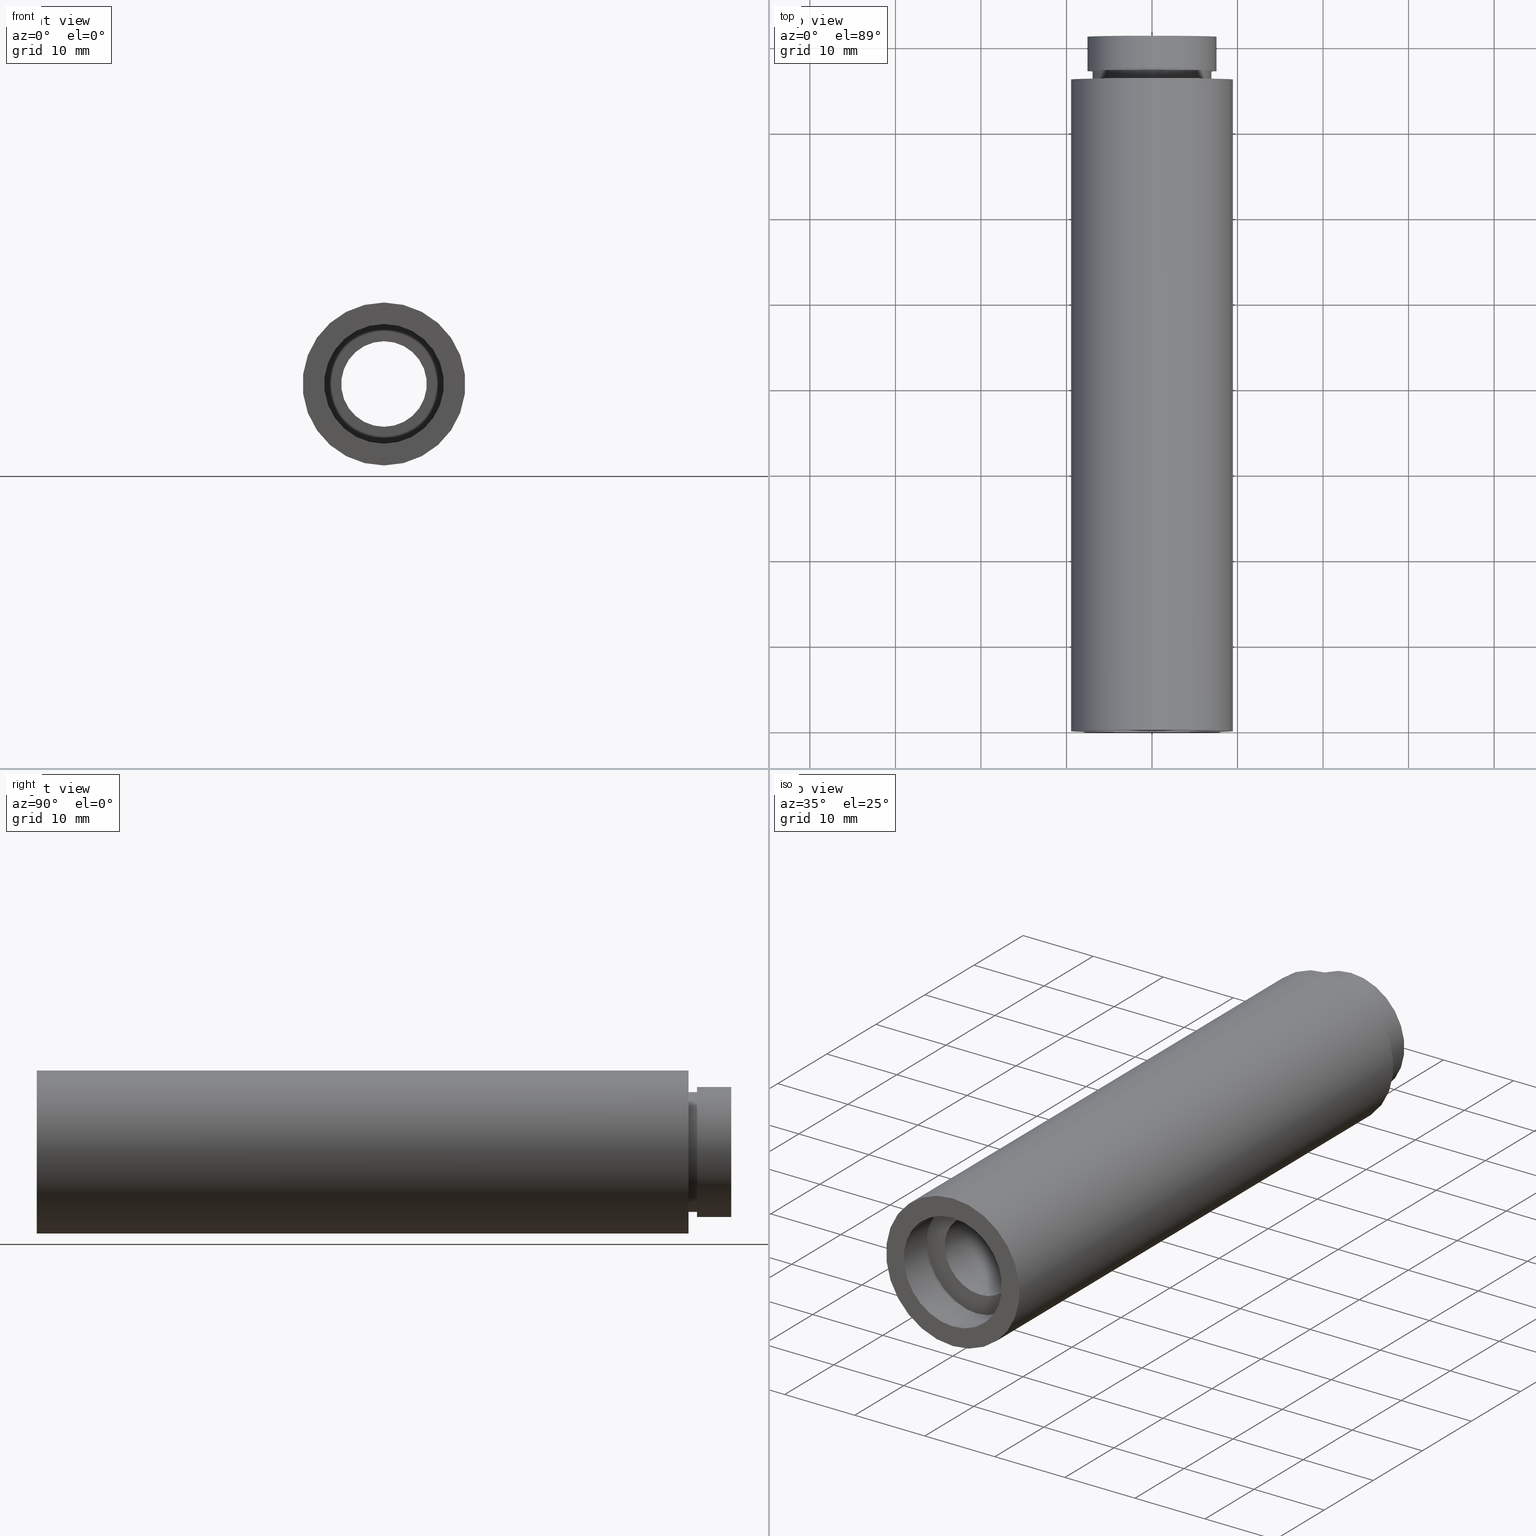
[diagram: canonical four-view strip — front | top / right | iso, engineering-drawing reading convention]
A machine part, canonical four-view strip (front | top / right | iso — engineering-drawing reading convention). The complete STEP part file that produces these views, byte-faithful:
ISO-10303-21;
HEADER;
FILE_DESCRIPTION (( 'STEP AP214' ),
    '1' );
FILE_NAME ('503088.STEP',
    '2019-09-11T06:05:59',
    ( '' ),
    ( '' ),
    'SwSTEP 2.0',
    'SolidWorks 2016',
    '' );
FILE_SCHEMA (( 'AUTOMOTIVE_DESIGN' ));
ENDSEC;

DATA;
#1 = SURFACE_STYLE_FILL_AREA ( #586 ) ;
#2 =( LENGTH_UNIT ( ) NAMED_UNIT ( * ) SI_UNIT ( .MILLI., .METRE. ) );
#3 = FACE_OUTER_BOUND ( 'NONE', #488, .T. ) ;
#4 = VERTEX_POINT ( 'NONE', #70 ) ;
#5 = CARTESIAN_POINT ( 'NONE',  ( 0.0000000000000000000, 161.3761669434274500, 0.0000000000000000000 ) ) ;
#6 = DIRECTION ( 'NONE',  ( -0.0000000000000000000, 1.000000000000000000, -0.0000000000000000000 ) ) ;
#7 = ORIENTED_EDGE ( 'NONE', *, *, #216, .T. ) ;
#8 =( NAMED_UNIT ( * ) SI_UNIT ( $, .STERADIAN. ) SOLID_ANGLE_UNIT ( ) );
#9 = ORIENTED_EDGE ( 'NONE', *, *, #555, .T. ) ;
#10 = ORIENTED_EDGE ( 'NONE', *, *, #426, .F. ) ;
#11 = DIRECTION ( 'NONE',  ( 0.0000000000000000000, 0.0000000000000000000, 1.000000000000000000 ) ) ;
#12 = EDGE_CURVE ( 'NONE', #300, #248, #200, .T. ) ;
#13 = ADVANCED_FACE ( 'NONE', ( #185 ), #491, .F. ) ;
#14 = APPLICATION_CONTEXT ( 'automotive_design' ) ;
#15 = CARTESIAN_POINT ( 'NONE',  ( 0.0000000000000000000, 4.499999999999976000, 0.0000000000000000000 ) ) ;
#16 = ADVANCED_FACE ( 'NONE', ( #104 ), #370, .T. ) ;
#17 = EDGE_CURVE ( 'NONE', #266, #565, #528, .T. ) ;
#18 = AXIS2_PLACEMENT_3D ( 'NONE', #480, #576, #322 ) ;
#19 = DIRECTION ( 'NONE',  ( 0.0000000000000000000, 0.0000000000000000000, 1.000000000000000000 ) ) ;
#20 = LINE ( 'NONE', #486, #561 ) ;
#21 = DIRECTION ( 'NONE',  ( -0.0000000000000000000, 1.000000000000000000, -0.0000000000000000000 ) ) ;
#22 = LINE ( 'NONE', #193, #329 ) ;
#23 = VERTEX_POINT ( 'NONE', #267 ) ;
#24 = PRESENTATION_LAYER_ASSIGNMENT (  '', '', ( #179 ) ) ;
#25 = CARTESIAN_POINT ( 'NONE',  ( 0.0000000000000000000, 161.3761669434274500, 0.0000000000000000000 ) ) ;
#26 = CIRCLE ( 'NONE', #64, 7.000000000000020400 ) ;
#27 = DIRECTION ( 'NONE',  ( -0.0000000000000000000, 1.000000000000000000, -0.0000000000000000000 ) ) ;
#28 = ORIENTED_EDGE ( 'NONE', *, *, #379, .F. ) ;
#29 = ORIENTED_EDGE ( 'NONE', *, *, #17, .T. ) ;
#30 = DIRECTION ( 'NONE',  ( -0.0000000000000000000, 1.000000000000000000, -0.0000000000000000000 ) ) ;
#31 = APPLICATION_CONTEXT ( 'automotive_design' ) ;
#32 = EDGE_LOOP ( 'NONE', ( #451, #115 ) ) ;
#33 = PRODUCT_DEFINITION_SHAPE ( 'NONE', 'NONE',  #145 ) ;
#34 =( NAMED_UNIT ( * ) PLANE_ANGLE_UNIT ( ) SI_UNIT ( $, .RADIAN. ) );
#35 = DIRECTION ( 'NONE',  ( -0.0000000000000000000, 1.000000000000000000, -0.0000000000000000000 ) ) ;
#36 = DIRECTION ( 'NONE',  ( 0.0000000000000000000, 0.0000000000000000000, 1.000000000000000000 ) ) ;
#37 = EDGE_LOOP ( 'NONE', ( #269, #55 ) ) ;
#38 = SURFACE_STYLE_USAGE ( .BOTH. , #138 ) ;
#39 = VECTOR ( 'NONE', #252, 1000.000000000000000 ) ;
#40 = DIRECTION ( 'NONE',  ( 0.0000000000000000000, 0.0000000000000000000, 1.000000000000000000 ) ) ;
#41 = UNCERTAINTY_MEASURE_WITH_UNIT (LENGTH_MEASURE( 1.000000000000000100E-005 ), #383, 'distance_accuracy_value', 'NONE');
#42 = AXIS2_PLACEMENT_3D ( 'NONE', #363, #136, #473 ) ;
#43 = ORIENTED_EDGE ( 'NONE', *, *, #468, .F. ) ;
#44 = CIRCLE ( 'NONE', #59, 5.000000000000018700 ) ;
#45 = FILL_AREA_STYLE ('',( #88 ) ) ;
#46 = EDGE_LOOP ( 'NONE', ( #521, #453 ) ) ;
#47 = CARTESIAN_POINT ( 'NONE',  ( 0.0000000000000000000, 161.3761669434274500, 0.0000000000000000000 ) ) ;
#48 =( NAMED_UNIT ( * ) SI_UNIT ( $, .STERADIAN. ) SOLID_ANGLE_UNIT ( ) );
#49 =( GEOMETRIC_REPRESENTATION_CONTEXT ( 3 ) GLOBAL_UNCERTAINTY_ASSIGNED_CONTEXT ( ( #105 ) ) GLOBAL_UNIT_ASSIGNED_CONTEXT ( ( #445, #58, #164 ) ) REPRESENTATION_CONTEXT ( 'NONE', 'WORKASPACE' ) );
#50 = SURFACE_STYLE_USAGE ( .BOTH. , #199 ) ;
#51 = AXIS2_PLACEMENT_3D ( 'NONE', #47, #378, #282 ) ;
#52 = CARTESIAN_POINT ( 'NONE',  ( 6.123233995736789000E-016, 5.499999999999976900, -5.000000000000019500 ) ) ;
#53 = PRESENTATION_STYLE_ASSIGNMENT (( #38 ) ) ;
#54 = ORIENTED_EDGE ( 'NONE', *, *, #426, .T. ) ;
#55 = ORIENTED_EDGE ( 'NONE', *, *, #555, .F. ) ;
#56 = FILL_AREA_STYLE_COLOUR ( '', #277 ) ;
#57 = CYLINDRICAL_SURFACE ( 'NONE', #550, 7.600000000000011200 ) ;
#58 =( NAMED_UNIT ( * ) PLANE_ANGLE_UNIT ( ) SI_UNIT ( $, .RADIAN. ) );
#59 = AXIS2_PLACEMENT_3D ( 'NONE', #463, #407, #76 ) ;
#60 =( NAMED_UNIT ( * ) PLANE_ANGLE_UNIT ( ) SI_UNIT ( $, .RADIAN. ) );
#61 = ORIENTED_EDGE ( 'NONE', *, *, #483, .F. ) ;
#62 = UNCERTAINTY_MEASURE_WITH_UNIT (LENGTH_MEASURE( 1.000000000000000100E-005 ), #86, 'distance_accuracy_value', 'NONE');
#63 = DIRECTION ( 'NONE',  ( 0.0000000000000000000, -1.000000000000000000, 0.0000000000000000000 ) ) ;
#64 = AXIS2_PLACEMENT_3D ( 'NONE', #393, #297, #582 ) ;
#65 = DIRECTION ( 'NONE',  ( -0.0000000000000000000, 1.000000000000000000, -0.0000000000000000000 ) ) ;
#66 = CARTESIAN_POINT ( 'NONE',  ( 0.0000000000000000000, 81.19999999999998900, 0.0000000000000000000 ) ) ;
#67 = FACE_BOUND ( 'NONE', #291, .T. ) ;
#68 = FACE_BOUND ( 'NONE', #32, .T. ) ;
#69 = ORIENTED_EDGE ( 'NONE', *, *, #476, .F. ) ;
#70 = CARTESIAN_POINT ( 'NONE',  ( 9.307315673519907200E-016, 4.499999999999976000, -7.600000000000019200 ) ) ;
#71 = FACE_BOUND ( 'NONE', #470, .T. ) ;
#72 = AXIS2_PLACEMENT_3D ( 'NONE', #158, #587, #540 ) ;
#73 = PRODUCT_CONTEXT ( 'NONE', #14, 'mechanical' ) ;
#74 = EDGE_LOOP ( 'NONE', ( #592, #516, #433, #325 ) ) ;
#75 = EDGE_LOOP ( 'NONE', ( #29, #454 ) ) ;
#76 = DIRECTION ( 'NONE',  ( 0.0000000000000000000, 0.0000000000000000000, 1.000000000000000000 ) ) ;
#77 = EDGE_CURVE ( 'NONE', #248, #300, #389, .T. ) ;
#78 = CARTESIAN_POINT ( 'NONE',  ( 9.307315673519909100E-016, 5.499999999999976900, -7.600000000000020100 ) ) ;
#79 = EDGE_LOOP ( 'NONE', ( #442, #244 ) ) ;
#80 = EDGE_CURVE ( 'NONE', #192, #221, #44, .T. ) ;
#81 = DIRECTION ( 'NONE',  ( -0.0000000000000000000, 1.000000000000000000, -0.0000000000000000000 ) ) ;
#82 = AXIS2_PLACEMENT_3D ( 'NONE', #536, #530, #574 ) ;
#83 = CARTESIAN_POINT ( 'NONE',  ( 1.166476076187856400E-015, 161.3761669434274500, -9.525000000000019900 ) ) ;
#84 = STYLED_ITEM ( 'NONE', ( #198 ), #388 ) ;
#85 = UNCERTAINTY_MEASURE_WITH_UNIT (LENGTH_MEASURE( 1.000000000000000100E-005 ), #126, 'distance_accuracy_value', 'NONE');
#86 =( LENGTH_UNIT ( ) NAMED_UNIT ( * ) SI_UNIT ( .MILLI., .METRE. ) );
#87 = DIRECTION ( 'NONE',  ( -0.0000000000000000000, 1.000000000000000000, -0.0000000000000000000 ) ) ;
#88 = FILL_AREA_STYLE_COLOUR ( '', #381 ) ;
#89 = EDGE_CURVE ( 'NONE', #602, #336, #380, .T. ) ;
#90 =( NAMED_UNIT ( * ) PLANE_ANGLE_UNIT ( ) SI_UNIT ( $, .RADIAN. ) );
#91 = EDGE_CURVE ( 'NONE', #364, #229, #458, .T. ) ;
#92 = CARTESIAN_POINT ( 'NONE',  ( 7.600000000000020100, 5.499999999999984000, 0.0000000000000000000 ) ) ;
#93 = ORIENTED_EDGE ( 'NONE', *, *, #597, .T. ) ;
#94 = SURFACE_STYLE_FILL_AREA ( #350 ) ;
#95 = DIRECTION ( 'NONE',  ( 0.0000000000000000000, 0.0000000000000000000, 1.000000000000000000 ) ) ;
#96 = COLOUR_RGB ( '',1.000000000000000000, 1.000000000000000000, 1.000000000000000000 ) ;
#97 = VERTEX_POINT ( 'NONE', #271 ) ;
#98 = CARTESIAN_POINT ( 'NONE',  ( 9.307315673519897300E-016, 161.3761669434274500, -7.600000000000011200 ) ) ;
#99 = DIRECTION ( 'NONE',  ( 0.0000000000000000000, 0.0000000000000000000, 1.000000000000000000 ) ) ;
#100 = CLOSED_SHELL ( 'NONE', ( #295, #504, #452, #163, #299, #211, #585, #16, #172, #335, #394, #447, #113, #388, #258, #588, #547, #13 ) ) ;
#101 = CYLINDRICAL_SURFACE ( 'NONE', #18, 7.000000000000020400 ) ;
#102 = PRESENTATION_STYLE_ASSIGNMENT (( #50 ) ) ;
#103 = AXIS2_PLACEMENT_3D ( 'NONE', #92, #287, #245 ) ;
#104 = FACE_OUTER_BOUND ( 'NONE', #408, .T. ) ;
#105 = UNCERTAINTY_MEASURE_WITH_UNIT (LENGTH_MEASURE( 1.000000000000000100E-005 ), #445, 'distance_accuracy_value', 'NONE');
#106 = CIRCLE ( 'NONE', #616, 5.000000000000018700 ) ;
#107 = DIRECTION ( 'NONE',  ( 0.0000000000000000000, 0.0000000000000000000, 1.000000000000000000 ) ) ;
#108 = ORIENTED_EDGE ( 'NONE', *, *, #89, .F. ) ;
#109 = VERTEX_POINT ( 'NONE', #78 ) ;
#110 = ORIENTED_EDGE ( 'NONE', *, *, #91, .T. ) ;
#111 = CIRCLE ( 'NONE', #467, 7.000000000000019500 ) ;
#112 = DIRECTION ( 'NONE',  ( -0.0000000000000000000, 1.000000000000000000, 0.0000000000000000000 ) ) ;
#113 = ADVANCED_FACE ( 'NONE', ( #427, #513 ), #183, .F. ) ;
#114 = SURFACE_SIDE_STYLE ('',( #120 ) ) ;
#115 = ORIENTED_EDGE ( 'NONE', *, *, #147, .F. ) ;
#116 = PRODUCT ( '503088', '503088', '', ( #73 ) ) ;
#117 = LINE ( 'NONE', #475, #132 ) ;
#118 = MECHANICAL_DESIGN_GEOMETRIC_PRESENTATION_REPRESENTATION (  '', ( #84 ), #401 ) ;
#119 = COLOUR_RGB ( '',1.000000000000000000, 1.000000000000000000, 1.000000000000000000 ) ;
#120 = SURFACE_STYLE_FILL_AREA ( #342 ) ;
#121 = EDGE_LOOP ( 'NONE', ( #69, #214, #142, #226 ) ) ;
#122 = CARTESIAN_POINT ( 'NONE',  ( 0.0000000000000000000, 77.19999999999998900, 0.0000000000000000000 ) ) ;
#123 = EDGE_CURVE ( 'NONE', #4, #109, #219, .T. ) ;
#124 = EDGE_CURVE ( 'NONE', #392, #356, #441, .T. ) ;
#125 = STYLED_ITEM ( 'NONE', ( #194 ), #492 ) ;
#126 =( LENGTH_UNIT ( ) NAMED_UNIT ( * ) SI_UNIT ( .MILLI., .METRE. ) );
#127 = ORIENTED_EDGE ( 'NONE', *, *, #476, .T. ) ;
#128 = DIRECTION ( 'NONE',  ( 0.0000000000000000000, 0.0000000000000000000, 1.000000000000000000 ) ) ;
#129 = AXIS2_PLACEMENT_3D ( 'NONE', #500, #289, #330 ) ;
#130 = DIRECTION ( 'NONE',  ( -0.0000000000000000000, 1.000000000000000000, -0.0000000000000000000 ) ) ;
#131 = PRESENTATION_STYLE_ASSIGNMENT (( #409 ) ) ;
#132 = VECTOR ( 'NONE', #241, 1000.000000000000000 ) ;
#133 = DIRECTION ( 'NONE',  ( 0.0000000000000000000, 0.0000000000000000000, 1.000000000000000000 ) ) ;
#134 = CARTESIAN_POINT ( 'NONE',  ( 9.525000000000019900, 76.19999999999998900, 0.0000000000000000000 ) ) ;
#135 = AXIS2_PLACEMENT_3D ( 'NONE', #332, #580, #497 ) ;
#136 = DIRECTION ( 'NONE',  ( -0.0000000000000000000, 1.000000000000000000, -0.0000000000000000000 ) ) ;
#137 = AXIS2_PLACEMENT_3D ( 'NONE', #430, #239, #570 ) ;
#138 = SURFACE_SIDE_STYLE ('',( #242 ) ) ;
#139 = ORIENTED_EDGE ( 'NONE', *, *, #313, .F. ) ;
#140 = VECTOR ( 'NONE', #265, 1000.000000000000000 ) ;
#141 = EDGE_LOOP ( 'NONE', ( #253, #110 ) ) ;
#142 = ORIENTED_EDGE ( 'NONE', *, *, #468, .T. ) ;
#143 = CARTESIAN_POINT ( 'NONE',  ( 8.572527594031485000E-016, 161.3761669434274500, -7.000000000000010700 ) ) ;
#144 = CARTESIAN_POINT ( 'NONE',  ( 0.0000000000000000000, 76.19999999999998900, 9.525000000000019900 ) ) ;
#145 = PRODUCT_DEFINITION ( 'δ֪', '', #398, #338 ) ;
#146 = CARTESIAN_POINT ( 'NONE',  ( 8.572527594031496900E-016, 4.499999999999976000, -7.000000000000020400 ) ) ;
#147 = EDGE_CURVE ( 'NONE', #97, #397, #268, .T. ) ;
#148 = AXIS2_PLACEMENT_3D ( 'NONE', #153, #490, #95 ) ;
#149 = CIRCLE ( 'NONE', #148, 7.600000000000020100 ) ;
#150 = FILL_AREA_STYLE_COLOUR ( '', #207 ) ;
#151 = FACE_OUTER_BOUND ( 'NONE', #75, .T. ) ;
#152 = ORIENTED_EDGE ( 'NONE', *, *, #396, .F. ) ;
#153 = CARTESIAN_POINT ( 'NONE',  ( 0.0000000000000000000, 5.499999999999976900, 0.0000000000000000000 ) ) ;
#154 = MECHANICAL_DESIGN_GEOMETRIC_PRESENTATION_REPRESENTATION (  '', ( #288 ), #327 ) ;
#155 = CIRCLE ( 'NONE', #256, 7.600000000000010300 ) ;
#156 = CIRCLE ( 'NONE', #196, 9.525000000000019900 ) ;
#157 = MANIFOLD_SOLID_BREP ( '��ת1', #100 ) ;
#158 = CARTESIAN_POINT ( 'NONE',  ( 7.000000000000010700, 77.19999999999998900, 0.0000000000000000000 ) ) ;
#159 = DIRECTION ( 'NONE',  ( 0.0000000000000000000, -0.0000000000000000000, -1.000000000000000000 ) ) ;
#160 = CIRCLE ( 'NONE', #135, 7.600000000000019200 ) ;
#161 = AXIS2_PLACEMENT_3D ( 'NONE', #560, #600, #423 ) ;
#162 = CARTESIAN_POINT ( 'NONE',  ( 0.0000000000000000000, 81.19999999999998900, 0.0000000000000000000 ) ) ;
#163 = ADVANCED_FACE ( 'NONE', ( #508 ), #57, .T. ) ;
#164 =( NAMED_UNIT ( * ) SI_UNIT ( $, .STERADIAN. ) SOLID_ANGLE_UNIT ( ) );
#165 = DIRECTION ( 'NONE',  ( 0.0000000000000000000, 0.0000000000000000000, 1.000000000000000000 ) ) ;
#166 = SURFACE_STYLE_FILL_AREA ( #169 ) ;
#167 = CARTESIAN_POINT ( 'NONE',  ( 0.0000000000000000000, -2.775557561562891400E-014, 0.0000000000000000000 ) ) ;
#168 = DIRECTION ( 'NONE',  ( 0.0000000000000000000, 0.0000000000000000000, 1.000000000000000000 ) ) ;
#169 = FILL_AREA_STYLE ('',( #450 ) ) ;
#170 = AXIS2_PLACEMENT_3D ( 'NONE', #15, #307, #559 ) ;
#171 = CYLINDRICAL_SURFACE ( 'NONE', #51, 7.000000000000010700 ) ;
#172 = ADVANCED_FACE ( 'NONE', ( #68, #151 ), #321, .F. ) ;
#173 = SURFACE_STYLE_FILL_AREA ( #375 ) ;
#174 = DIRECTION ( 'NONE',  ( -0.0000000000000000000, 1.000000000000000000, -0.0000000000000000000 ) ) ;
#175 = MECHANICAL_DESIGN_GEOMETRIC_PRESENTATION_REPRESENTATION (  '', ( #279 ), #369 ) ;
#176 = SURFACE_STYLE_USAGE ( .BOTH. , #114 ) ;
#177 = LINE ( 'NONE', #340, #39 ) ;
#178 = DIRECTION ( 'NONE',  ( -0.0000000000000000000, 1.000000000000000000, -0.0000000000000000000 ) ) ;
#179 = STYLED_ITEM ( 'NONE', ( #102 ), #295 ) ;
#180 = ORIENTED_EDGE ( 'NONE', *, *, #12, .T. ) ;
#181 = UNCERTAINTY_MEASURE_WITH_UNIT (LENGTH_MEASURE( 1.000000000000000100E-005 ), #610, 'distance_accuracy_value', 'NONE');
#182 = ORIENTED_EDGE ( 'NONE', *, *, #614, .T. ) ;
#183 = PLANE ( 'NONE',  #591 ) ;
#184 = EDGE_CURVE ( 'NONE', #261, #565, #262, .T. ) ;
#185 = FACE_OUTER_BOUND ( 'NONE', #575, .T. ) ;
#186 = AXIS2_PLACEMENT_3D ( 'NONE', #197, #532, #284 ) ;
#187 = ORIENTED_EDGE ( 'NONE', *, *, #12, .F. ) ;
#188 = SURFACE_SIDE_STYLE ('',( #345 ) ) ;
#189 = LINE ( 'NONE', #209, #286 ) ;
#190 = CARTESIAN_POINT ( 'NONE',  ( 0.0000000000000000000, -2.775557561562891400E-014, 0.0000000000000000000 ) ) ;
#191 = DIRECTION ( 'NONE',  ( -0.0000000000000000000, 1.000000000000000000, -0.0000000000000000000 ) ) ;
#192 = VERTEX_POINT ( 'NONE', #428 ) ;
#193 = CARTESIAN_POINT ( 'NONE',  ( 6.123233995736788000E-016, 161.3761669434274500, -5.000000000000018700 ) ) ;
#194 = PRESENTATION_STYLE_ASSIGNMENT (( #390 ) ) ;
#195 = SURFACE_STYLE_USAGE ( .BOTH. , #478 ) ;
#196 = AXIS2_PLACEMENT_3D ( 'NONE', #167, #65, #19 ) ;
#197 = CARTESIAN_POINT ( 'NONE',  ( 0.0000000000000000000, 161.3761669434274500, 0.0000000000000000000 ) ) ;
#198 = PRESENTATION_STYLE_ASSIGNMENT (( #391 ) ) ;
#199 = SURFACE_SIDE_STYLE ('',( #173 ) ) ;
#200 = CIRCLE ( 'NONE', #465, 7.000000000000010700 ) ;
#201 = PRESENTATION_LAYER_ASSIGNMENT (  '', '', ( #341 ) ) ;
#202 = DIRECTION ( 'NONE',  ( -0.0000000000000000000, 1.000000000000000000, -0.0000000000000000000 ) ) ;
#203 = EDGE_CURVE ( 'NONE', #364, #221, #22, .T. ) ;
#204 = FACE_OUTER_BOUND ( 'NONE', #121, .T. ) ;
#205 = VERTEX_POINT ( 'NONE', #527 ) ;
#206 = DIRECTION ( 'NONE',  ( -0.0000000000000000000, 1.000000000000000000, -0.0000000000000000000 ) ) ;
#207 = COLOUR_RGB ( '',1.000000000000000000, 1.000000000000000000, 1.000000000000000000 ) ;
#208 =( GEOMETRIC_REPRESENTATION_CONTEXT ( 3 ) GLOBAL_UNCERTAINTY_ASSIGNED_CONTEXT ( ( #222 ) ) GLOBAL_UNIT_ASSIGNED_CONTEXT ( ( #293, #589, #8 ) ) REPRESENTATION_CONTEXT ( 'NONE', 'WORKASPACE' ) );
#209 = CARTESIAN_POINT ( 'NONE',  ( 0.0000000000000000000, 161.3761669434274500, 7.000000000000010700 ) ) ;
#210 = CARTESIAN_POINT ( 'NONE',  ( 0.0000000000000000000, 76.19999999999998900, 0.0000000000000000000 ) ) ;
#211 = ADVANCED_FACE ( 'NONE', ( #275 ), #556, .T. ) ;
#212 = DIRECTION ( 'NONE',  ( -0.0000000000000000000, 1.000000000000000000, -0.0000000000000000000 ) ) ;
#213 = FACE_OUTER_BOUND ( 'NONE', #405, .T. ) ;
#214 = ORIENTED_EDGE ( 'NONE', *, *, #123, .T. ) ;
#215 = DIRECTION ( 'NONE',  ( -0.0000000000000000000, 1.000000000000000000, -0.0000000000000000000 ) ) ;
#216 = EDGE_CURVE ( 'NONE', #308, #437, #359, .T. ) ;
#217 = DIRECTION ( 'NONE',  ( 0.0000000000000000000, 0.0000000000000000000, 1.000000000000000000 ) ) ;
#218 = DIRECTION ( 'NONE',  ( 0.0000000000000000000, 0.0000000000000000000, 1.000000000000000000 ) ) ;
#219 = LINE ( 'NONE', #554, #352 ) ;
#220 = ORIENTED_EDGE ( 'NONE', *, *, #124, .F. ) ;
#221 = VERTEX_POINT ( 'NONE', #518 ) ;
#222 = UNCERTAINTY_MEASURE_WITH_UNIT (LENGTH_MEASURE( 1.000000000000000100E-005 ), #293, 'distance_accuracy_value', 'NONE');
#223 = DIRECTION ( 'NONE',  ( 1.000000000000000000, 0.0000000000000000000, 0.0000000000000000000 ) ) ;
#224 = FILL_AREA_STYLE_COLOUR ( '', #119 ) ;
#225 =( GEOMETRIC_REPRESENTATION_CONTEXT ( 3 ) GLOBAL_UNCERTAINTY_ASSIGNED_CONTEXT ( ( #439 ) ) GLOBAL_UNIT_ASSIGNED_CONTEXT ( ( #347, #402, #595 ) ) REPRESENTATION_CONTEXT ( 'NONE', 'WORKASPACE' ) );
#226 = ORIENTED_EDGE ( 'NONE', *, *, #317, .F. ) ;
#227 = AXIS2_PLACEMENT_3D ( 'NONE', #5, #501, #590 ) ;
#228 = LINE ( 'NONE', #98, #376 ) ;
#229 = VERTEX_POINT ( 'NONE', #566 ) ;
#230 = MECHANICAL_DESIGN_GEOMETRIC_PRESENTATION_REPRESENTATION (  '', ( #341 ), #487 ) ;
#231 = CARTESIAN_POINT ( 'NONE',  ( 0.0000000000000000000, 77.19999999999998900, 0.0000000000000000000 ) ) ;
#232 = VERTEX_POINT ( 'NONE', #316 ) ;
#233 = FACE_OUTER_BOUND ( 'NONE', #362, .T. ) ;
#234 = AXIS2_PLACEMENT_3D ( 'NONE', #134, #612, #567 ) ;
#235 = DIRECTION ( 'NONE',  ( -0.0000000000000000000, 1.000000000000000000, -0.0000000000000000000 ) ) ;
#236 =( NAMED_UNIT ( * ) SI_UNIT ( $, .STERADIAN. ) SOLID_ANGLE_UNIT ( ) );
#237 = CARTESIAN_POINT ( 'NONE',  ( 0.0000000000000000000, 161.3761669434274500, 0.0000000000000000000 ) ) ;
#238 = ORIENTED_EDGE ( 'NONE', *, *, #474, .F. ) ;
#239 = DIRECTION ( 'NONE',  ( -0.0000000000000000000, 1.000000000000000000, -0.0000000000000000000 ) ) ;
#240 = VECTOR ( 'NONE', #618, 1000.000000000000000 ) ;
#241 = DIRECTION ( 'NONE',  ( -0.0000000000000000000, 1.000000000000000000, -0.0000000000000000000 ) ) ;
#242 = SURFACE_STYLE_FILL_AREA ( #319 ) ;
#243 =( NAMED_UNIT ( * ) PLANE_ANGLE_UNIT ( ) SI_UNIT ( $, .RADIAN. ) );
#244 = ORIENTED_EDGE ( 'NONE', *, *, #396, .T. ) ;
#245 = DIRECTION ( 'NONE',  ( 0.0000000000000000000, 0.0000000000000000000, 1.000000000000000000 ) ) ;
#246 = ORIENTED_EDGE ( 'NONE', *, *, #446, .T. ) ;
#247 = CARTESIAN_POINT ( 'NONE',  ( 0.0000000000000000000, 77.19999999999998900, 7.000000000000010700 ) ) ;
#248 = VERTEX_POINT ( 'NONE', #571 ) ;
#249 = CIRCLE ( 'NONE', #301, 7.000000000000010700 ) ;
#250 = ORIENTED_EDGE ( 'NONE', *, *, #382, .T. ) ;
#251 = CARTESIAN_POINT ( 'NONE',  ( 0.0000000000000000000, 161.3761669434274500, 0.0000000000000000000 ) ) ;
#252 = DIRECTION ( 'NONE',  ( -0.0000000000000000000, 1.000000000000000000, -0.0000000000000000000 ) ) ;
#253 = ORIENTED_EDGE ( 'NONE', *, *, #432, .T. ) ;
#254 = EDGE_CURVE ( 'NONE', #229, #192, #117, .T. ) ;
#255 = CARTESIAN_POINT ( 'NONE',  ( 9.307315673519895300E-016, 77.19999999999998900, -7.600000000000010300 ) ) ;
#256 = AXIS2_PLACEMENT_3D ( 'NONE', #384, #212, #107 ) ;
#257 = EDGE_LOOP ( 'NONE', ( #28, #318, #182, #152 ) ) ;
#258 = ADVANCED_FACE ( 'NONE', ( #3, #506 ), #531, .F. ) ;
#259 = APPLICATION_PROTOCOL_DEFINITION ( 'draft international standard', 'automotive_design', 1998, #14 ) ;
#260 = STYLED_ITEM ( 'NONE', ( #302 ), #452 ) ;
#261 = VERTEX_POINT ( 'NONE', #431 ) ;
#262 = LINE ( 'NONE', #83, #415 ) ;
#263 = ORIENTED_EDGE ( 'NONE', *, *, #91, .F. ) ;
#264 = FACE_BOUND ( 'NONE', #611, .T. ) ;
#265 = DIRECTION ( 'NONE',  ( -0.0000000000000000000, 1.000000000000000000, -0.0000000000000000000 ) ) ;
#266 = VERTEX_POINT ( 'NONE', #144 ) ;
#267 = CARTESIAN_POINT ( 'NONE',  ( 0.0000000000000000000, 5.499999999999976900, 7.600000000000020100 ) ) ;
#268 = CIRCLE ( 'NONE', #622, 7.000000000000010700 ) ;
#269 = ORIENTED_EDGE ( 'NONE', *, *, #272, .F. ) ;
#270 = SHAPE_DEFINITION_REPRESENTATION ( #33, #492 ) ;
#271 = CARTESIAN_POINT ( 'NONE',  ( 8.572527594031485000E-016, 76.19999999999998900, -7.000000000000010700 ) ) ;
#272 = EDGE_CURVE ( 'NONE', #205, #261, #344, .T. ) ;
#273 = ORIENTED_EDGE ( 'NONE', *, *, #446, .F. ) ;
#274 = CIRCLE ( 'NONE', #507, 7.600000000000011200 ) ;
#275 = FACE_OUTER_BOUND ( 'NONE', #371, .T. ) ;
#276 = EDGE_LOOP ( 'NONE', ( #283, #10, #460, #568 ) ) ;
#277 = COLOUR_RGB ( '',1.000000000000000000, 1.000000000000000000, 1.000000000000000000 ) ;
#278 = DIRECTION ( 'NONE',  ( 0.0000000000000000000, 0.0000000000000000000, 1.000000000000000000 ) ) ;
#279 = STYLED_ITEM ( 'NONE', ( #53 ), #157 ) ;
#280 = ORIENTED_EDGE ( 'NONE', *, *, #89, .T. ) ;
#281 = MECHANICAL_DESIGN_GEOMETRIC_PRESENTATION_REPRESENTATION (  '', ( #125 ), #49 ) ;
#282 = DIRECTION ( 'NONE',  ( 0.0000000000000000000, 0.0000000000000000000, 1.000000000000000000 ) ) ;
#283 = ORIENTED_EDGE ( 'NONE', *, *, #123, .F. ) ;
#284 = DIRECTION ( 'NONE',  ( 0.0000000000000000000, 0.0000000000000000000, 1.000000000000000000 ) ) ;
#285 = DIRECTION ( 'NONE',  ( -0.0000000000000000000, 1.000000000000000000, -0.0000000000000000000 ) ) ;
#286 = VECTOR ( 'NONE', #215, 1000.000000000000000 ) ;
#287 = DIRECTION ( 'NONE',  ( -0.0000000000000000000, 1.000000000000000000, 0.0000000000000000000 ) ) ;
#288 = STYLED_ITEM ( 'NONE', ( #457 ), #163 ) ;
#289 = DIRECTION ( 'NONE',  ( -0.0000000000000000000, 1.000000000000000000, -0.0000000000000000000 ) ) ;
#290 = AXIS2_PLACEMENT_3D ( 'NONE', #434, #63, #159 ) ;
#291 = EDGE_LOOP ( 'NONE', ( #180, #615 ) ) ;
#292 = ORIENTED_EDGE ( 'NONE', *, *, #366, .F. ) ;
#293 =( LENGTH_UNIT ( ) NAMED_UNIT ( * ) SI_UNIT ( .MILLI., .METRE. ) );
#294 = PLANE ( 'NONE',  #479 ) ;
#295 = ADVANCED_FACE ( 'NONE', ( #233 ), #101, .F. ) ;
#296 = CIRCLE ( 'NONE', #129, 5.000000000000019500 ) ;
#297 = DIRECTION ( 'NONE',  ( -0.0000000000000000000, 1.000000000000000000, -0.0000000000000000000 ) ) ;
#298 = ORIENTED_EDGE ( 'NONE', *, *, #474, .T. ) ;
#299 = ADVANCED_FACE ( 'NONE', ( #213 ), #171, .T. ) ;
#300 = VERTEX_POINT ( 'NONE', #247 ) ;
#301 = AXIS2_PLACEMENT_3D ( 'NONE', #210, #443, #448 ) ;
#302 = PRESENTATION_STYLE_ASSIGNMENT (( #195 ) ) ;
#303 = FILL_AREA_STYLE_COLOUR ( '', #96 ) ;
#304 = DIRECTION ( 'NONE',  ( 0.0000000000000000000, 0.0000000000000000000, 1.000000000000000000 ) ) ;
#305 = EDGE_LOOP ( 'NONE', ( #238, #424, #412, #543 ) ) ;
#306 = PRESENTATION_LAYER_ASSIGNMENT (  '', '', ( #279 ) ) ;
#307 = DIRECTION ( 'NONE',  ( -0.0000000000000000000, 1.000000000000000000, -0.0000000000000000000 ) ) ;
#308 = VERTEX_POINT ( 'NONE', #374 ) ;
#309 = ORIENTED_EDGE ( 'NONE', *, *, #614, .F. ) ;
#310 = PRESENTATION_LAYER_ASSIGNMENT (  '', '', ( #260 ) ) ;
#311 = SURFACE_STYLE_USAGE ( .BOTH. , #188 ) ;
#312 = CIRCLE ( 'NONE', #42, 7.000000000000019500 ) ;
#313 = EDGE_CURVE ( 'NONE', #565, #266, #323, .T. ) ;
#314 = DIRECTION ( 'NONE',  ( -0.0000000000000000000, 1.000000000000000000, -0.0000000000000000000 ) ) ;
#315 = DIRECTION ( 'NONE',  ( -0.0000000000000000000, 1.000000000000000000, -0.0000000000000000000 ) ) ;
#316 = CARTESIAN_POINT ( 'NONE',  ( 0.0000000000000000000, 4.499999999999976000, 7.000000000000020400 ) ) ;
#317 = EDGE_CURVE ( 'NONE', #620, #23, #477, .T. ) ;
#318 = ORIENTED_EDGE ( 'NONE', *, *, #603, .T. ) ;
#319 = FILL_AREA_STYLE ('',( #517 ) ) ;
#320 = DIRECTION ( 'NONE',  ( 0.0000000000000000000, 0.0000000000000000000, 1.000000000000000000 ) ) ;
#321 = PLANE ( 'NONE',  #234 ) ;
#322 = DIRECTION ( 'NONE',  ( 0.0000000000000000000, 0.0000000000000000000, 1.000000000000000000 ) ) ;
#323 = CIRCLE ( 'NONE', #82, 9.525000000000019900 ) ;
#324 = STYLED_ITEM ( 'NONE', ( #346 ), #13 ) ;
#325 = ORIENTED_EDGE ( 'NONE', *, *, #80, .T. ) ;
#326 = CARTESIAN_POINT ( 'NONE',  ( 9.307315673519897300E-016, 81.19999999999998900, -7.600000000000011200 ) ) ;
#327 =( GEOMETRIC_REPRESENTATION_CONTEXT ( 3 ) GLOBAL_UNCERTAINTY_ASSIGNED_CONTEXT ( ( #62 ) ) GLOBAL_UNIT_ASSIGNED_CONTEXT ( ( #86, #90, #361 ) ) REPRESENTATION_CONTEXT ( 'NONE', 'WORKASPACE' ) );
#328 = ORIENTED_EDGE ( 'NONE', *, *, #203, .T. ) ;
#329 = VECTOR ( 'NONE', #81, 1000.000000000000000 ) ;
#330 = DIRECTION ( 'NONE',  ( 0.0000000000000000000, 0.0000000000000000000, 1.000000000000000000 ) ) ;
#331 = CARTESIAN_POINT ( 'NONE',  ( 8.572527594031495900E-016, -2.775557561562891400E-014, -7.000000000000019500 ) ) ;
#332 = CARTESIAN_POINT ( 'NONE',  ( 0.0000000000000000000, 4.499999999999976000, 0.0000000000000000000 ) ) ;
#333 = SURFACE_SIDE_STYLE ('',( #166 ) ) ;
#334 = EDGE_CURVE ( 'NONE', #23, #109, #149, .T. ) ;
#335 = ADVANCED_FACE ( 'NONE', ( #399 ), #367, .T. ) ;
#336 = VERTEX_POINT ( 'NONE', #146 ) ;
#337 = DIRECTION ( 'NONE',  ( -0.0000000000000000000, 1.000000000000000000, -0.0000000000000000000 ) ) ;
#338 = PRODUCT_DEFINITION_CONTEXT ( 'detailed design', #31, 'design' ) ;
#339 = ORIENTED_EDGE ( 'NONE', *, *, #419, .F. ) ;
#340 = CARTESIAN_POINT ( 'NONE',  ( 0.0000000000000000000, 161.3761669434274500, 7.600000000000011200 ) ) ;
#341 = STYLED_ITEM ( 'NONE', ( #131 ), #447 ) ;
#342 = FILL_AREA_STYLE ('',( #303 ) ) ;
#343 = ORIENTED_EDGE ( 'NONE', *, *, #334, .F. ) ;
#344 = CIRCLE ( 'NONE', #577, 9.525000000000019900 ) ;
#345 = SURFACE_STYLE_FILL_AREA ( #357 ) ;
#346 = PRESENTATION_STYLE_ASSIGNMENT (( #176 ) ) ;
#347 =( LENGTH_UNIT ( ) NAMED_UNIT ( * ) SI_UNIT ( .MILLI., .METRE. ) );
#348 = FACE_OUTER_BOUND ( 'NONE', #498, .T. ) ;
#349 = DIRECTION ( 'NONE',  ( -0.0000000000000000000, 1.000000000000000000, -0.0000000000000000000 ) ) ;
#350 = FILL_AREA_STYLE ('',( #56 ) ) ;
#351 = FACE_OUTER_BOUND ( 'NONE', #257, .T. ) ;
#352 = VECTOR ( 'NONE', #349, 1000.000000000000000 ) ;
#353 = DIRECTION ( 'NONE',  ( 0.0000000000000000000, 0.0000000000000000000, 1.000000000000000000 ) ) ;
#354 = AXIS2_PLACEMENT_3D ( 'NONE', #25, #21, #36 ) ;
#355 = AXIS2_PLACEMENT_3D ( 'NONE', #360, #422, #133 ) ;
#356 = VERTEX_POINT ( 'NONE', #326 ) ;
#357 = FILL_AREA_STYLE ('',( #224 ) ) ;
#358 = PRESENTATION_LAYER_ASSIGNMENT (  '', '', ( #84 ) ) ;
#359 = CIRCLE ( 'NONE', #594, 7.600000000000010300 ) ;
#360 = CARTESIAN_POINT ( 'NONE',  ( 0.0000000000000000000, 4.499999999999976000, 0.0000000000000000000 ) ) ;
#361 =( NAMED_UNIT ( * ) SI_UNIT ( $, .STERADIAN. ) SOLID_ANGLE_UNIT ( ) );
#362 = EDGE_LOOP ( 'NONE', ( #482, #280, #246, #292 ) ) ;
#363 = CARTESIAN_POINT ( 'NONE',  ( 0.0000000000000000000, -2.775557561562891400E-014, 0.0000000000000000000 ) ) ;
#364 = VERTEX_POINT ( 'NONE', #52 ) ;
#365 =( LENGTH_UNIT ( ) NAMED_UNIT ( * ) SI_UNIT ( .MILLI., .METRE. ) );
#366 = EDGE_CURVE ( 'NONE', #512, #232, #20, .T. ) ;
#367 = CYLINDRICAL_SURFACE ( 'NONE', #186, 7.000000000000010700 ) ;
#368 = CARTESIAN_POINT ( 'NONE',  ( 0.0000000000000000000, -2.775557561562891400E-014, 0.0000000000000000000 ) ) ;
#369 =( GEOMETRIC_REPRESENTATION_CONTEXT ( 3 ) GLOBAL_UNCERTAINTY_ASSIGNED_CONTEXT ( ( #181 ) ) GLOBAL_UNIT_ASSIGNED_CONTEXT ( ( #610, #524, #236 ) ) REPRESENTATION_CONTEXT ( 'NONE', 'WORKASPACE' ) );
#370 = CYLINDRICAL_SURFACE ( 'NONE', #354, 9.525000000000019900 ) ;
#371 = EDGE_LOOP ( 'NONE', ( #553, #563, #456, #339 ) ) ;
#372 = PRODUCT_RELATED_PRODUCT_CATEGORY ( 'part', '', ( #116 ) ) ;
#373 = CARTESIAN_POINT ( 'NONE',  ( 0.0000000000000000000, 161.3761669434274500, 7.600000000000020100 ) ) ;
#374 = CARTESIAN_POINT ( 'NONE',  ( 0.0000000000000000000, 77.19999999999998900, 7.600000000000010300 ) ) ;
#375 = FILL_AREA_STYLE ('',( #150 ) ) ;
#376 = VECTOR ( 'NONE', #621, 1000.000000000000000 ) ;
#377 = PLANE ( 'NONE',  #290 ) ;
#378 = DIRECTION ( 'NONE',  ( -0.0000000000000000000, 1.000000000000000000, -0.0000000000000000000 ) ) ;
#379 = EDGE_CURVE ( 'NONE', #437, #356, #228, .T. ) ;
#380 = LINE ( 'NONE', #461, #140 ) ;
#381 = COLOUR_RGB ( '',1.000000000000000000, 1.000000000000000000, 1.000000000000000000 ) ;
#382 = EDGE_CURVE ( 'NONE', #397, #97, #249, .T. ) ;
#383 =( LENGTH_UNIT ( ) NAMED_UNIT ( * ) SI_UNIT ( .MILLI., .METRE. ) );
#384 = CARTESIAN_POINT ( 'NONE',  ( 0.0000000000000000000, 77.19999999999998900, 0.0000000000000000000 ) ) ;
#385 =( GEOMETRIC_REPRESENTATION_CONTEXT ( 3 ) GLOBAL_UNCERTAINTY_ASSIGNED_CONTEXT ( ( #569 ) ) GLOBAL_UNIT_ASSIGNED_CONTEXT ( ( #365, #243, #429 ) ) REPRESENTATION_CONTEXT ( 'NONE', 'WORKASPACE' ) );
#386 = CARTESIAN_POINT ( 'NONE',  ( 0.0000000000000000000, 161.3761669434274500, 9.525000000000019900 ) ) ;
#387 = LINE ( 'NONE', #386, #541 ) ;
#388 = ADVANCED_FACE ( 'NONE', ( #462 ), #414, .F. ) ;
#389 = CIRCLE ( 'NONE', #525, 7.000000000000010700 ) ;
#390 = SURFACE_STYLE_USAGE ( .BOTH. , #333 ) ;
#391 = SURFACE_STYLE_USAGE ( .BOTH. , #436 ) ;
#392 = VERTEX_POINT ( 'NONE', #583 ) ;
#393 = CARTESIAN_POINT ( 'NONE',  ( 0.0000000000000000000, 4.499999999999976000, 0.0000000000000000000 ) ) ;
#394 = ADVANCED_FACE ( 'NONE', ( #406, #67 ), #440, .F. ) ;
#395 = CARTESIAN_POINT ( 'NONE',  ( 0.0000000000000000000, 4.499999999999976000, 7.600000000000019200 ) ) ;
#396 = EDGE_CURVE ( 'NONE', #356, #392, #274, .T. ) ;
#397 = VERTEX_POINT ( 'NONE', #495 ) ;
#398 = PRODUCT_DEFINITION_FORMATION_WITH_SPECIFIED_SOURCE ( '�κ�', '', #116, .NOT_KNOWN. ) ;
#399 = FACE_OUTER_BOUND ( 'NONE', #305, .T. ) ;
#400 = CARTESIAN_POINT ( 'NONE',  ( 0.0000000000000000000, 77.19999999999998900, 0.0000000000000000000 ) ) ;
#401 =( GEOMETRIC_REPRESENTATION_CONTEXT ( 3 ) GLOBAL_UNCERTAINTY_ASSIGNED_CONTEXT ( ( #41 ) ) GLOBAL_UNIT_ASSIGNED_CONTEXT ( ( #383, #60, #548 ) ) REPRESENTATION_CONTEXT ( 'NONE', 'WORKASPACE' ) );
#402 =( NAMED_UNIT ( * ) PLANE_ANGLE_UNIT ( ) SI_UNIT ( $, .RADIAN. ) );
#403 = APPLICATION_PROTOCOL_DEFINITION ( 'draft international standard', 'automotive_design', 1998, #31 ) ;
#404 = CYLINDRICAL_SURFACE ( 'NONE', #558, 5.000000000000018700 ) ;
#405 = EDGE_LOOP ( 'NONE', ( #250, #298, #187, #526 ) ) ;
#406 = FACE_OUTER_BOUND ( 'NONE', #46, .T. ) ;
#407 = DIRECTION ( 'NONE',  ( -0.0000000000000000000, 1.000000000000000000, -0.0000000000000000000 ) ) ;
#408 = EDGE_LOOP ( 'NONE', ( #581, #9, #607, #139 ) ) ;
#409 = SURFACE_STYLE_USAGE ( .BOTH. , #598 ) ;
#410 = DIRECTION ( 'NONE',  ( 0.0000000000000000000, 0.0000000000000000000, 1.000000000000000000 ) ) ;
#411 = DIRECTION ( 'NONE',  ( 0.0000000000000000000, -1.000000000000000000, 0.0000000000000000000 ) ) ;
#412 = ORIENTED_EDGE ( 'NONE', *, *, #593, .T. ) ;
#413 =( NAMED_UNIT ( * ) SI_UNIT ( $, .STERADIAN. ) SOLID_ANGLE_UNIT ( ) );
#414 = CYLINDRICAL_SURFACE ( 'NONE', #535, 5.000000000000018700 ) ;
#415 = VECTOR ( 'NONE', #191, 1000.000000000000000 ) ;
#416 = AXIS2_PLACEMENT_3D ( 'NONE', #251, #6, #410 ) ;
#417 = ORIENTED_EDGE ( 'NONE', *, *, #379, .T. ) ;
#418 = DIRECTION ( 'NONE',  ( -0.0000000000000000000, 1.000000000000000000, -0.0000000000000000000 ) ) ;
#419 = EDGE_CURVE ( 'NONE', #205, #266, #387, .T. ) ;
#420 = UNCERTAINTY_MEASURE_WITH_UNIT (LENGTH_MEASURE( 1.000000000000000100E-005 ), #2, 'distance_accuracy_value', 'NONE');
#421 = FACE_OUTER_BOUND ( 'NONE', #37, .T. ) ;
#422 = DIRECTION ( 'NONE',  ( -0.0000000000000000000, 1.000000000000000000, -0.0000000000000000000 ) ) ;
#423 = DIRECTION ( 'NONE',  ( 0.0000000000000000000, 0.0000000000000000000, 1.000000000000000000 ) ) ;
#424 = ORIENTED_EDGE ( 'NONE', *, *, #147, .T. ) ;
#425 = DIRECTION ( 'NONE',  ( -0.0000000000000000000, 1.000000000000000000, -0.0000000000000000000 ) ) ;
#426 = EDGE_CURVE ( 'NONE', #620, #4, #160, .T. ) ;
#427 = FACE_BOUND ( 'NONE', #624, .T. ) ;
#428 = CARTESIAN_POINT ( 'NONE',  ( 0.0000000000000000000, 81.19999999999998900, 5.000000000000018700 ) ) ;
#429 =( NAMED_UNIT ( * ) SI_UNIT ( $, .STERADIAN. ) SOLID_ANGLE_UNIT ( ) );
#430 = CARTESIAN_POINT ( 'NONE',  ( 0.0000000000000000000, 5.499999999999976900, 0.0000000000000000000 ) ) ;
#431 = CARTESIAN_POINT ( 'NONE',  ( 1.166476076187856400E-015, -2.775557561562891400E-014, -9.525000000000019900 ) ) ;
#432 = EDGE_CURVE ( 'NONE', #229, #364, #296, .T. ) ;
#433 = ORIENTED_EDGE ( 'NONE', *, *, #254, .T. ) ;
#434 = CARTESIAN_POINT ( 'NONE',  ( 7.000000000000020400, 4.499999999999983100, 0.0000000000000000000 ) ) ;
#435 = CYLINDRICAL_SURFACE ( 'NONE', #416, 7.600000000000011200 ) ;
#436 = SURFACE_SIDE_STYLE ('',( #1 ) ) ;
#437 = VERTEX_POINT ( 'NONE', #255 ) ;
#438 = ORIENTED_EDGE ( 'NONE', *, *, #549, .F. ) ;
#439 = UNCERTAINTY_MEASURE_WITH_UNIT (LENGTH_MEASURE( 1.000000000000000100E-005 ), #347, 'distance_accuracy_value', 'NONE');
#440 = PLANE ( 'NONE',  #72 ) ;
#441 = CIRCLE ( 'NONE', #161, 7.600000000000011200 ) ;
#442 = ORIENTED_EDGE ( 'NONE', *, *, #124, .T. ) ;
#443 = DIRECTION ( 'NONE',  ( -0.0000000000000000000, 1.000000000000000000, -0.0000000000000000000 ) ) ;
#444 = COLOUR_RGB ( '',1.000000000000000000, 1.000000000000000000, 1.000000000000000000 ) ;
#445 =( LENGTH_UNIT ( ) NAMED_UNIT ( * ) SI_UNIT ( .MILLI., .METRE. ) );
#446 = EDGE_CURVE ( 'NONE', #336, #232, #551, .T. ) ;
#447 = ADVANCED_FACE ( 'NONE', ( #351 ), #435, .T. ) ;
#448 = DIRECTION ( 'NONE',  ( 0.0000000000000000000, 0.0000000000000000000, 1.000000000000000000 ) ) ;
#449 = PRESENTATION_LAYER_ASSIGNMENT (  '', '', ( #288 ) ) ;
#450 = FILL_AREA_STYLE_COLOUR ( '', #444 ) ;
#451 = ORIENTED_EDGE ( 'NONE', *, *, #382, .F. ) ;
#452 = ADVANCED_FACE ( 'NONE', ( #348 ), #404, .F. ) ;
#453 = ORIENTED_EDGE ( 'NONE', *, *, #603, .F. ) ;
#454 = ORIENTED_EDGE ( 'NONE', *, *, #313, .T. ) ;
#455 = CIRCLE ( 'NONE', #355, 7.600000000000019200 ) ;
#456 = ORIENTED_EDGE ( 'NONE', *, *, #17, .F. ) ;
#457 = PRESENTATION_STYLE_ASSIGNMENT (( #311 ) ) ;
#458 = CIRCLE ( 'NONE', #503, 5.000000000000019500 ) ;
#459 = DIRECTION ( 'NONE',  ( 0.0000000000000000000, 0.0000000000000000000, 1.000000000000000000 ) ) ;
#460 = ORIENTED_EDGE ( 'NONE', *, *, #317, .T. ) ;
#461 = CARTESIAN_POINT ( 'NONE',  ( 8.572527594031496900E-016, 161.3761669434274500, -7.000000000000020400 ) ) ;
#462 = FACE_OUTER_BOUND ( 'NONE', #74, .T. ) ;
#463 = CARTESIAN_POINT ( 'NONE',  ( 0.0000000000000000000, 81.19999999999998900, 0.0000000000000000000 ) ) ;
#464 = ORIENTED_EDGE ( 'NONE', *, *, #549, .T. ) ;
#465 = AXIS2_PLACEMENT_3D ( 'NONE', #400, #178, #304 ) ;
#466 = DIRECTION ( 'NONE',  ( 0.0000000000000000000, 0.0000000000000000000, 1.000000000000000000 ) ) ;
#467 = AXIS2_PLACEMENT_3D ( 'NONE', #190, #315, #522 ) ;
#468 = EDGE_CURVE ( 'NONE', #109, #23, #494, .T. ) ;
#469 = CARTESIAN_POINT ( 'NONE',  ( 0.0000000000000000000, 76.19999999999998900, 0.0000000000000000000 ) ) ;
#470 = EDGE_LOOP ( 'NONE', ( #534, #273 ) ) ;
#471 = PRESENTATION_LAYER_ASSIGNMENT (  '', '', ( #125 ) ) ;
#472 = CARTESIAN_POINT ( 'NONE',  ( 0.0000000000000000000, 161.3761669434274500, 0.0000000000000000000 ) ) ;
#473 = DIRECTION ( 'NONE',  ( 0.0000000000000000000, 0.0000000000000000000, 1.000000000000000000 ) ) ;
#474 = EDGE_CURVE ( 'NONE', #97, #248, #605, .T. ) ;
#475 = CARTESIAN_POINT ( 'NONE',  ( 0.0000000000000000000, 161.3761669434274500, 5.000000000000018700 ) ) ;
#476 = EDGE_CURVE ( 'NONE', #4, #620, #455, .T. ) ;
#477 = LINE ( 'NONE', #373, #240 ) ;
#478 = SURFACE_SIDE_STYLE ('',( #502 ) ) ;
#479 = AXIS2_PLACEMENT_3D ( 'NONE', #496, #112, #11 ) ;
#480 = CARTESIAN_POINT ( 'NONE',  ( 0.0000000000000000000, 161.3761669434274500, 0.0000000000000000000 ) ) ;
#481 = ORIENTED_EDGE ( 'NONE', *, *, #80, .F. ) ;
#482 = ORIENTED_EDGE ( 'NONE', *, *, #493, .F. ) ;
#483 = EDGE_CURVE ( 'NONE', #512, #602, #111, .T. ) ;
#484 = MECHANICAL_DESIGN_GEOMETRIC_PRESENTATION_REPRESENTATION (  '', ( #179 ), #604 ) ;
#485 = FACE_OUTER_BOUND ( 'NONE', #619, .T. ) ;
#486 = CARTESIAN_POINT ( 'NONE',  ( 0.0000000000000000000, 161.3761669434274500, 7.000000000000020400 ) ) ;
#487 =( GEOMETRIC_REPRESENTATION_CONTEXT ( 3 ) GLOBAL_UNCERTAINTY_ASSIGNED_CONTEXT ( ( #85 ) ) GLOBAL_UNIT_ASSIGNED_CONTEXT ( ( #126, #34, #413 ) ) REPRESENTATION_CONTEXT ( 'NONE', 'WORKASPACE' ) );
#488 = EDGE_LOOP ( 'NONE', ( #343, #43 ) ) ;
#489 = COLOUR_RGB ( '',1.000000000000000000, 1.000000000000000000, 1.000000000000000000 ) ;
#490 = DIRECTION ( 'NONE',  ( -0.0000000000000000000, 1.000000000000000000, -0.0000000000000000000 ) ) ;
#491 = CYLINDRICAL_SURFACE ( 'NONE', #557, 7.000000000000020400 ) ;
#492 = ADVANCED_BREP_SHAPE_REPRESENTATION ( '503088', ( #157, #601 ), #208 ) ;
#493 = EDGE_CURVE ( 'NONE', #602, #512, #312, .T. ) ;
#494 = CIRCLE ( 'NONE', #137, 7.600000000000020100 ) ;
#495 = CARTESIAN_POINT ( 'NONE',  ( 0.0000000000000000000, 76.19999999999998900, 7.000000000000010700 ) ) ;
#496 = CARTESIAN_POINT ( 'NONE',  ( 7.000000000000019500, -1.650046791174882700E-014, 0.0000000000000000000 ) ) ;
#497 = DIRECTION ( 'NONE',  ( 0.0000000000000000000, 0.0000000000000000000, 1.000000000000000000 ) ) ;
#498 = EDGE_LOOP ( 'NONE', ( #263, #328, #464, #599 ) ) ;
#499 = CARTESIAN_POINT ( 'NONE',  ( 1.166476076187856400E-015, 76.19999999999998900, -9.525000000000019900 ) ) ;
#500 = CARTESIAN_POINT ( 'NONE',  ( 0.0000000000000000000, 5.499999999999976900, 0.0000000000000000000 ) ) ;
#501 = DIRECTION ( 'NONE',  ( -0.0000000000000000000, 1.000000000000000000, -0.0000000000000000000 ) ) ;
#502 = SURFACE_STYLE_FILL_AREA ( #45 ) ;
#503 = AXIS2_PLACEMENT_3D ( 'NONE', #511, #514, #353 ) ;
#504 = ADVANCED_FACE ( 'NONE', ( #204 ), #552, .F. ) ;
#505 = CARTESIAN_POINT ( 'NONE',  ( 0.0000000000000000000, 161.3761669434274500, 0.0000000000000000000 ) ) ;
#506 = FACE_BOUND ( 'NONE', #141, .T. ) ;
#507 = AXIS2_PLACEMENT_3D ( 'NONE', #162, #206, #168 ) ;
#508 = FACE_OUTER_BOUND ( 'NONE', #539, .T. ) ;
#509 = FACE_OUTER_BOUND ( 'NONE', #276, .T. ) ;
#510 = CARTESIAN_POINT ( 'NONE',  ( 7.600000000000011200, 81.19999999999998900, 0.0000000000000000000 ) ) ;
#511 = CARTESIAN_POINT ( 'NONE',  ( 0.0000000000000000000, 5.499999999999976900, 0.0000000000000000000 ) ) ;
#512 = VERTEX_POINT ( 'NONE', #623 ) ;
#513 = FACE_OUTER_BOUND ( 'NONE', #79, .T. ) ;
#514 = DIRECTION ( 'NONE',  ( -0.0000000000000000000, 1.000000000000000000, -0.0000000000000000000 ) ) ;
#515 = PRESENTATION_LAYER_ASSIGNMENT (  '', '', ( #324 ) ) ;
#516 = ORIENTED_EDGE ( 'NONE', *, *, #432, .F. ) ;
#517 = FILL_AREA_STYLE_COLOUR ( '', #617 ) ;
#518 = CARTESIAN_POINT ( 'NONE',  ( 6.123233995736788000E-016, 81.19999999999998900, -5.000000000000018700 ) ) ;
#519 = MECHANICAL_DESIGN_GEOMETRIC_PRESENTATION_REPRESENTATION (  '', ( #260 ), #385 ) ;
#520 = DIRECTION ( 'NONE',  ( 0.0000000000000000000, 0.0000000000000000000, 1.000000000000000000 ) ) ;
#521 = ORIENTED_EDGE ( 'NONE', *, *, #216, .F. ) ;
#522 = DIRECTION ( 'NONE',  ( 0.0000000000000000000, 0.0000000000000000000, 1.000000000000000000 ) ) ;
#523 = CARTESIAN_POINT ( 'NONE',  ( 0.0000000000000000000, 161.3761669434274500, 0.0000000000000000000 ) ) ;
#524 =( NAMED_UNIT ( * ) PLANE_ANGLE_UNIT ( ) SI_UNIT ( $, .RADIAN. ) );
#525 = AXIS2_PLACEMENT_3D ( 'NONE', #122, #30, #459 ) ;
#526 = ORIENTED_EDGE ( 'NONE', *, *, #593, .F. ) ;
#527 = CARTESIAN_POINT ( 'NONE',  ( 0.0000000000000000000, -2.775557561562891400E-014, 9.525000000000019900 ) ) ;
#528 = CIRCLE ( 'NONE', #545, 9.525000000000019900 ) ;
#529 = ORIENTED_EDGE ( 'NONE', *, *, #493, .T. ) ;
#530 = DIRECTION ( 'NONE',  ( -0.0000000000000000000, 1.000000000000000000, -0.0000000000000000000 ) ) ;
#531 = PLANE ( 'NONE',  #103 ) ;
#532 = DIRECTION ( 'NONE',  ( -0.0000000000000000000, 1.000000000000000000, -0.0000000000000000000 ) ) ;
#533 = DIRECTION ( 'NONE',  ( -0.0000000000000000000, 1.000000000000000000, -0.0000000000000000000 ) ) ;
#534 = ORIENTED_EDGE ( 'NONE', *, *, #597, .F. ) ;
#535 = AXIS2_PLACEMENT_3D ( 'NONE', #579, #533, #165 ) ;
#536 = CARTESIAN_POINT ( 'NONE',  ( 0.0000000000000000000, 76.19999999999998900, 0.0000000000000000000 ) ) ;
#537 = CYLINDRICAL_SURFACE ( 'NONE', #227, 7.600000000000020100 ) ;
#538 = ORIENTED_EDGE ( 'NONE', *, *, #366, .T. ) ;
#539 = EDGE_LOOP ( 'NONE', ( #7, #417, #220, #309 ) ) ;
#540 = DIRECTION ( 'NONE',  ( 0.0000000000000000000, 0.0000000000000000000, 1.000000000000000000 ) ) ;
#541 = VECTOR ( 'NONE', #337, 1000.000000000000000 ) ;
#542 = FILL_AREA_STYLE_COLOUR ( '', #489 ) ;
#543 = ORIENTED_EDGE ( 'NONE', *, *, #77, .F. ) ;
#544 = DIRECTION ( 'NONE',  ( 0.0000000000000000000, 0.0000000000000000000, 1.000000000000000000 ) ) ;
#545 = AXIS2_PLACEMENT_3D ( 'NONE', #562, #35, #128 ) ;
#546 = CARTESIAN_POINT ( 'NONE',  ( 0.0000000000000000000, 0.0000000000000000000, 0.0000000000000000000 ) ) ;
#547 = ADVANCED_FACE ( 'NONE', ( #71, #485 ), #377, .F. ) ;
#548 =( NAMED_UNIT ( * ) SI_UNIT ( $, .STERADIAN. ) SOLID_ANGLE_UNIT ( ) );
#549 = EDGE_CURVE ( 'NONE', #221, #192, #106, .T. ) ;
#550 = AXIS2_PLACEMENT_3D ( 'NONE', #523, #418, #520 ) ;
#551 = CIRCLE ( 'NONE', #170, 7.000000000000020400 ) ;
#552 = CYLINDRICAL_SURFACE ( 'NONE', #584, 7.600000000000020100 ) ;
#553 = ORIENTED_EDGE ( 'NONE', *, *, #272, .T. ) ;
#554 = CARTESIAN_POINT ( 'NONE',  ( 9.307315673519909100E-016, 161.3761669434274500, -7.600000000000020100 ) ) ;
#555 = EDGE_CURVE ( 'NONE', #261, #205, #156, .T. ) ;
#556 = CYLINDRICAL_SURFACE ( 'NONE', #609, 9.525000000000019900 ) ;
#557 = AXIS2_PLACEMENT_3D ( 'NONE', #505, #27, #218 ) ;
#558 = AXIS2_PLACEMENT_3D ( 'NONE', #237, #87, #320 ) ;
#559 = DIRECTION ( 'NONE',  ( 0.0000000000000000000, 0.0000000000000000000, 1.000000000000000000 ) ) ;
#560 = CARTESIAN_POINT ( 'NONE',  ( 0.0000000000000000000, 81.19999999999998900, 0.0000000000000000000 ) ) ;
#561 = VECTOR ( 'NONE', #202, 1000.000000000000000 ) ;
#562 = CARTESIAN_POINT ( 'NONE',  ( 0.0000000000000000000, 76.19999999999998900, 0.0000000000000000000 ) ) ;
#563 = ORIENTED_EDGE ( 'NONE', *, *, #184, .T. ) ;
#564 = DIRECTION ( 'NONE',  ( -0.0000000000000000000, 1.000000000000000000, -0.0000000000000000000 ) ) ;
#565 = VERTEX_POINT ( 'NONE', #499 ) ;
#566 = CARTESIAN_POINT ( 'NONE',  ( 0.0000000000000000000, 5.499999999999976900, 5.000000000000019500 ) ) ;
#567 = DIRECTION ( 'NONE',  ( 0.0000000000000000000, -0.0000000000000000000, -1.000000000000000000 ) ) ;
#568 = ORIENTED_EDGE ( 'NONE', *, *, #334, .T. ) ;
#569 = UNCERTAINTY_MEASURE_WITH_UNIT (LENGTH_MEASURE( 1.000000000000000100E-005 ), #365, 'distance_accuracy_value', 'NONE');
#570 = DIRECTION ( 'NONE',  ( 0.0000000000000000000, 0.0000000000000000000, 1.000000000000000000 ) ) ;
#571 = CARTESIAN_POINT ( 'NONE',  ( 8.572527594031485000E-016, 77.19999999999998900, -7.000000000000010700 ) ) ;
#572 = MECHANICAL_DESIGN_GEOMETRIC_PRESENTATION_REPRESENTATION (  '', ( #324 ), #225 ) ;
#573 =( NAMED_UNIT ( * ) PLANE_ANGLE_UNIT ( ) SI_UNIT ( $, .RADIAN. ) );
#574 = DIRECTION ( 'NONE',  ( 0.0000000000000000000, 0.0000000000000000000, 1.000000000000000000 ) ) ;
#575 = EDGE_LOOP ( 'NONE', ( #108, #61, #538, #93 ) ) ;
#576 = DIRECTION ( 'NONE',  ( -0.0000000000000000000, 1.000000000000000000, -0.0000000000000000000 ) ) ;
#577 = AXIS2_PLACEMENT_3D ( 'NONE', #368, #285, #99 ) ;
#578 = ORIENTED_EDGE ( 'NONE', *, *, #483, .T. ) ;
#579 = CARTESIAN_POINT ( 'NONE',  ( 0.0000000000000000000, 161.3761669434274500, 0.0000000000000000000 ) ) ;
#580 = DIRECTION ( 'NONE',  ( -0.0000000000000000000, 1.000000000000000000, -0.0000000000000000000 ) ) ;
#581 = ORIENTED_EDGE ( 'NONE', *, *, #184, .F. ) ;
#582 = DIRECTION ( 'NONE',  ( 0.0000000000000000000, 0.0000000000000000000, 1.000000000000000000 ) ) ;
#583 = CARTESIAN_POINT ( 'NONE',  ( 0.0000000000000000000, 81.19999999999998900, 7.600000000000011200 ) ) ;
#584 = AXIS2_PLACEMENT_3D ( 'NONE', #608, #235, #40 ) ;
#585 = ADVANCED_FACE ( 'NONE', ( #421, #264 ), #294, .F. ) ;
#586 = FILL_AREA_STYLE ('',( #542 ) ) ;
#587 = DIRECTION ( 'NONE',  ( -0.0000000000000000000, 1.000000000000000000, 0.0000000000000000000 ) ) ;
#588 = ADVANCED_FACE ( 'NONE', ( #509 ), #537, .F. ) ;
#589 =( NAMED_UNIT ( * ) PLANE_ANGLE_UNIT ( ) SI_UNIT ( $, .RADIAN. ) );
#590 = DIRECTION ( 'NONE',  ( 0.0000000000000000000, 0.0000000000000000000, 1.000000000000000000 ) ) ;
#591 = AXIS2_PLACEMENT_3D ( 'NONE', #510, #411, #596 ) ;
#592 = ORIENTED_EDGE ( 'NONE', *, *, #203, .F. ) ;
#593 = EDGE_CURVE ( 'NONE', #397, #300, #189, .T. ) ;
#594 = AXIS2_PLACEMENT_3D ( 'NONE', #231, #564, #606 ) ;
#595 =( NAMED_UNIT ( * ) SI_UNIT ( $, .STERADIAN. ) SOLID_ANGLE_UNIT ( ) );
#596 = DIRECTION ( 'NONE',  ( 0.0000000000000000000, -0.0000000000000000000, -1.000000000000000000 ) ) ;
#597 = EDGE_CURVE ( 'NONE', #232, #336, #26, .T. ) ;
#598 = SURFACE_SIDE_STYLE ('',( #94 ) ) ;
#599 = ORIENTED_EDGE ( 'NONE', *, *, #254, .F. ) ;
#600 = DIRECTION ( 'NONE',  ( -0.0000000000000000000, 1.000000000000000000, -0.0000000000000000000 ) ) ;
#601 = AXIS2_PLACEMENT_3D ( 'NONE', #546, #544, #223 ) ;
#602 = VERTEX_POINT ( 'NONE', #331 ) ;
#603 = EDGE_CURVE ( 'NONE', #437, #308, #155, .T. ) ;
#604 =( GEOMETRIC_REPRESENTATION_CONTEXT ( 3 ) GLOBAL_UNCERTAINTY_ASSIGNED_CONTEXT ( ( #420 ) ) GLOBAL_UNIT_ASSIGNED_CONTEXT ( ( #2, #573, #48 ) ) REPRESENTATION_CONTEXT ( 'NONE', 'WORKASPACE' ) );
#605 = LINE ( 'NONE', #143, #613 ) ;
#606 = DIRECTION ( 'NONE',  ( 0.0000000000000000000, 0.0000000000000000000, 1.000000000000000000 ) ) ;
#607 = ORIENTED_EDGE ( 'NONE', *, *, #419, .T. ) ;
#608 = CARTESIAN_POINT ( 'NONE',  ( 0.0000000000000000000, 161.3761669434274500, 0.0000000000000000000 ) ) ;
#609 = AXIS2_PLACEMENT_3D ( 'NONE', #472, #130, #466 ) ;
#610 =( LENGTH_UNIT ( ) NAMED_UNIT ( * ) SI_UNIT ( .MILLI., .METRE. ) );
#611 = EDGE_LOOP ( 'NONE', ( #578, #529 ) ) ;
#612 = DIRECTION ( 'NONE',  ( 0.0000000000000000000, -1.000000000000000000, 0.0000000000000000000 ) ) ;
#613 = VECTOR ( 'NONE', #314, 1000.000000000000000 ) ;
#614 = EDGE_CURVE ( 'NONE', #308, #392, #177, .T. ) ;
#615 = ORIENTED_EDGE ( 'NONE', *, *, #77, .T. ) ;
#616 = AXIS2_PLACEMENT_3D ( 'NONE', #66, #174, #217 ) ;
#617 = COLOUR_RGB ( '',1.000000000000000000, 1.000000000000000000, 1.000000000000000000 ) ;
#618 = DIRECTION ( 'NONE',  ( -0.0000000000000000000, 1.000000000000000000, -0.0000000000000000000 ) ) ;
#619 = EDGE_LOOP ( 'NONE', ( #54, #127 ) ) ;
#620 = VERTEX_POINT ( 'NONE', #395 ) ;
#621 = DIRECTION ( 'NONE',  ( -0.0000000000000000000, 1.000000000000000000, -0.0000000000000000000 ) ) ;
#622 = AXIS2_PLACEMENT_3D ( 'NONE', #469, #425, #278 ) ;
#623 = CARTESIAN_POINT ( 'NONE',  ( 0.0000000000000000000, -2.775557561562891400E-014, 7.000000000000019500 ) ) ;
#624 = EDGE_LOOP ( 'NONE', ( #481, #438 ) ) ;
ENDSEC;
END-ISO-10303-21;
